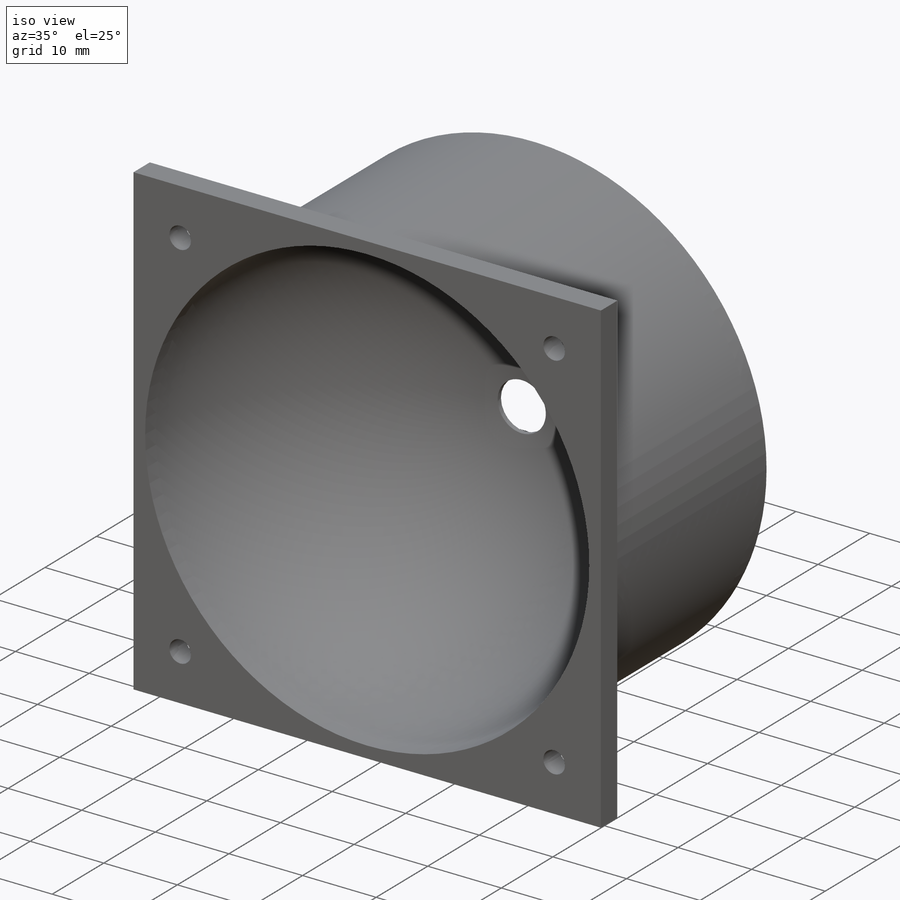
[diagram: iso view]
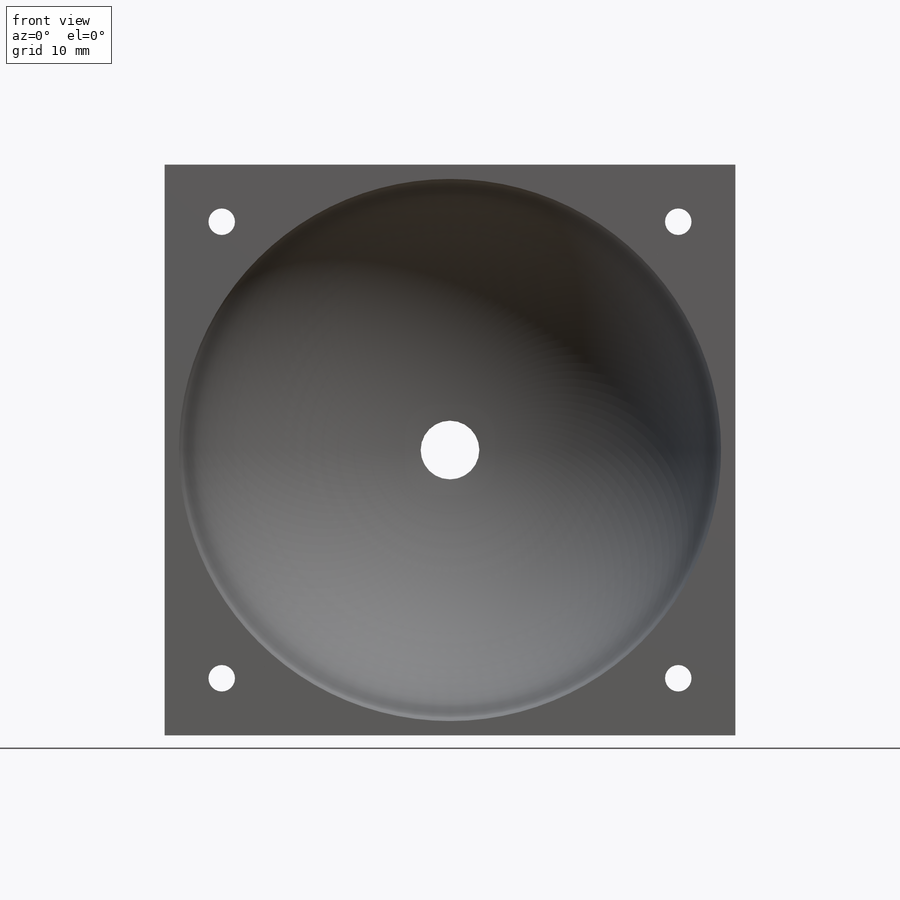
[diagram: front view]
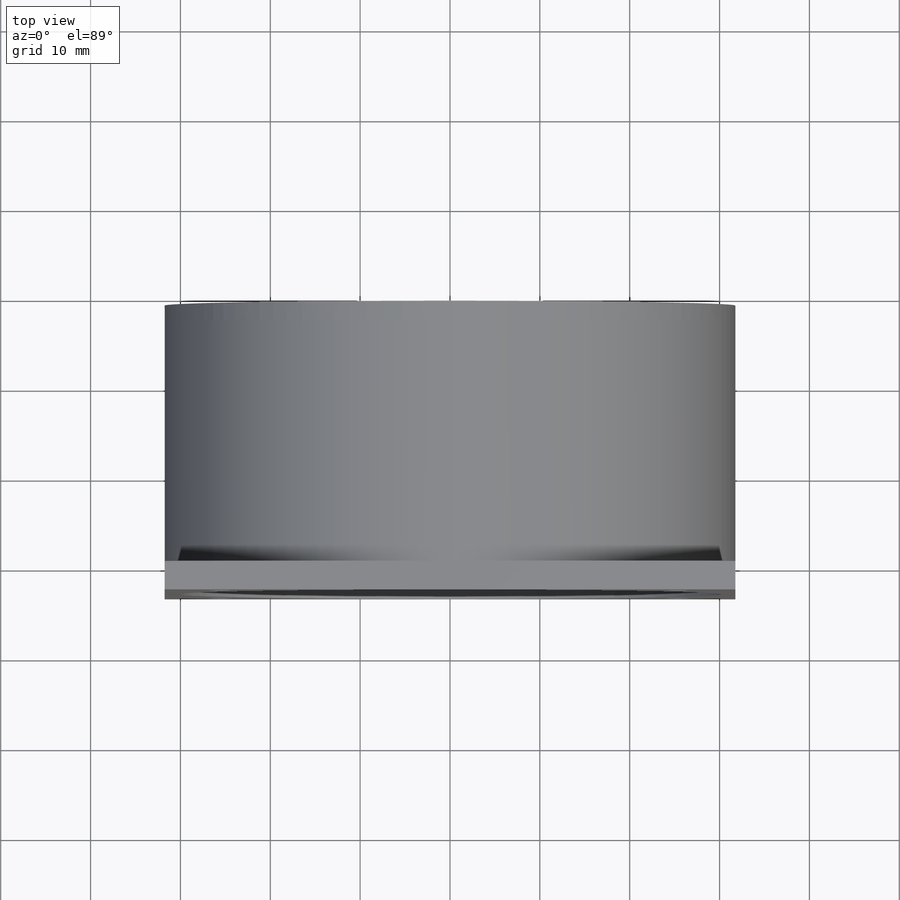
[diagram: top view]
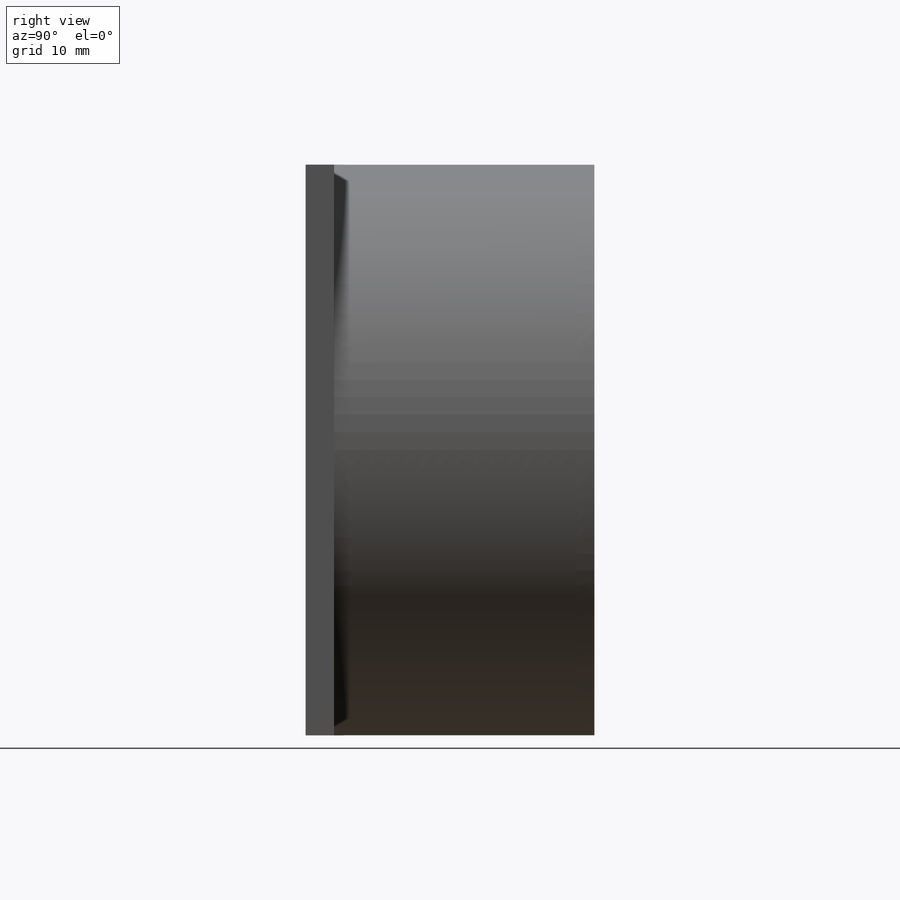
[diagram: right view]
SOLIDWORKS PART (.sldprt)
format: sldprt  version: not decoded by parser v0  size: 286,208 bytes
history: native  units: mm
features: sketch x8, cut_extrude x3, thread x3, extrude x2, material x1, fillet x1, hole x1 (+13 scaffold rows collapsed)
feature tree (32):
  scaffold x13  (default folders/planes/origin — collapsed)
  material  "6061 Alloy"
  sketch  "Sketch1"  dims[D9=2.9464mm D10=2.9464mm D11=2.9464mm D12=2.9464mm D13=~1.575147mm D1=63.5mm D2=63.5mm D3=31.75mm D4=31.75mm D5=25.4mm D6=25.4mm D7=25.4mm D8=25.4mm]
  extrude  "Extrude1"  Depth=3.175mm
  sketch  "Sketch2"  dims[D1=30.1625mm]
  extrude  "Extrude2"  Depth=28.956mm
  sketch  "Sketch3"  dims[D1=~29.36875mm]
  cut_extrude  "Cut-Extrude1"  Depth=30.1625mm
  fillet  "Fillet1"  Radius=30.1625mm
  sketch  "Sketch4"  dims[D1=3.175mm]
  cut_extrude  "Cut-Extrude2"  [1 undecoded]
  sketch  "Sketch6"  dims[D1=4.826mm]
  cut_extrude  "Cut-Extrude3"  Depth=1.524mm
  sketch  "Sketch8"  dims[c1.D1=~28.504079mm c2.D1=120.0deg c2.D2=~28.504079mm c3.D2=120.0deg]
  hole  "#4-40 Tapped Hole1"  Diameter=2.2606mm Depth=7.5946mm
  sketch  "3DSketch5"
  sketch  "Sketch13"  dims[hole-wizard template sketch: 50 standard entries collapsed; hole parameters above]
  thread  "Hole Thread1"  Diameter=5.6896mm  [1 undecoded]
  thread  "Hole Thread2"  Diameter=5.6896mm  [1 undecoded]
  thread  "Hole Thread3"  Diameter=5.6896mm  [1 undecoded]
decode coverage: 16 of 18 modeling features carry decoded parameters
note: ~ marks probable driven/reference dimensions
note: 4 parameter values undecoded
note: suppression state not decoded; provenance and decode notes live in map.json
